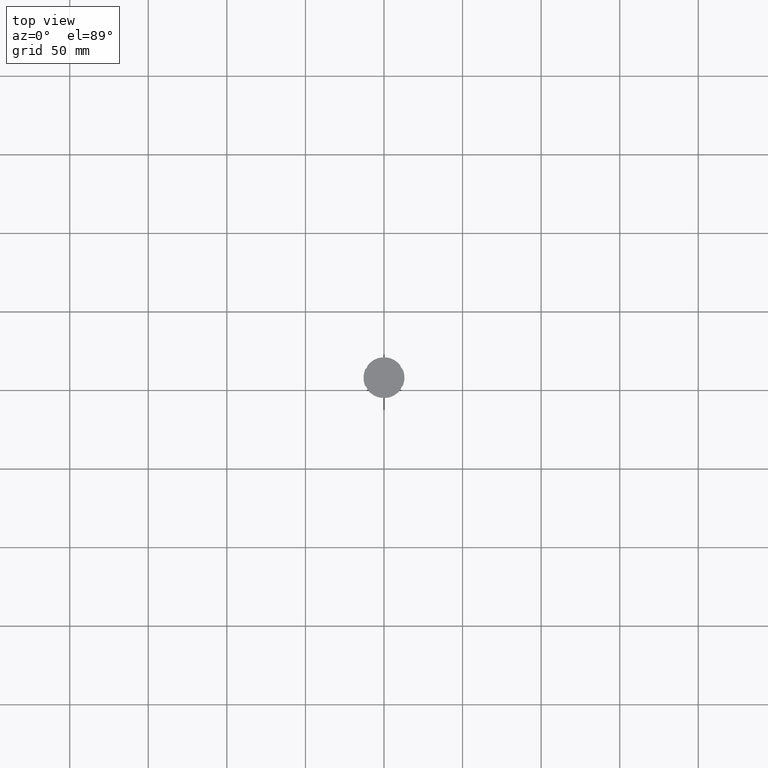
[diagram: clean part render]
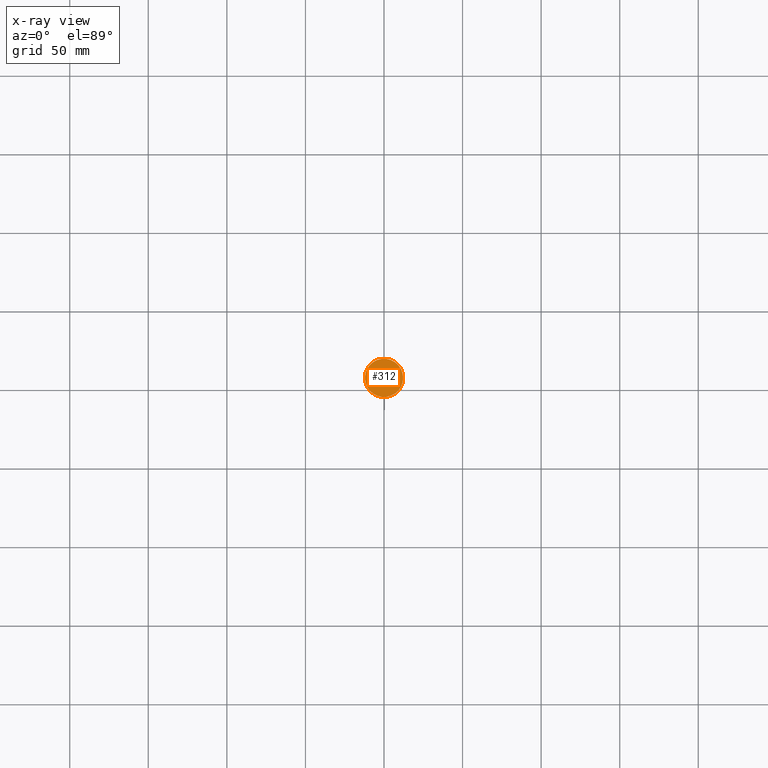
[diagram: x-ray — body ghosted, one internal face saturated and labeled with its STEP entity id]
A machine part, top view, then the same camera in x-ray: the body is ghosted and one INTERNAL B-rep face — a face not visible from any outside direction — is saturated and labeled: STEP entity #312.
In plain terms, the highlighted planar face has unit normal (0, 0, -1).
Its self-contained STEP definition (entity closure, byte-faithful):
#13 = EDGE_CURVE ( 'NONE', #2137, #1438, #2037, .T. ) ;
#32 = DIRECTION ( 'NONE',  ( -1.000000000000000000, 0.000000000000000000, -0.000000000000000000 ) ) ;
#312 = ADVANCED_FACE ( 'NONE', ( #1394 ), #1616, .F. ) ;
#439 = DIRECTION ( 'NONE',  ( -0.000000000000000000, -0.000000000000000000, 1.000000000000000000 ) ) ;
#486 = CARTESIAN_POINT ( 'NONE',  ( 0.000000000000000000, 0.000000000000000000, -12.00000000000000000 ) ) ;
#677 = CARTESIAN_POINT ( 'NONE',  ( 0.000000000000000000, 0.000000000000000000, -12.00000000000000000 ) ) ;
#770 = AXIS2_PLACEMENT_3D ( 'NONE', #1461, #2751, #2796 ) ;
#922 = EDGE_CURVE ( 'NONE', #1438, #2137, #2697, .T. ) ;
#1125 = DIRECTION ( 'NONE',  ( -1.000000000000000000, 0.000000000000000000, 0.000000000000000000 ) ) ;
#1352 = CARTESIAN_POINT ( 'NONE',  ( 12.20000000000000639, 1.512438796946981880E-15, -12.00000000000000000 ) ) ;
#1394 = FACE_OUTER_BOUND ( 'NONE', #1937, .T. ) ;
#1407 = DIRECTION ( 'NONE',  ( 0.000000000000000000, 0.000000000000000000, -1.000000000000000000 ) ) ;
#1438 = VERTEX_POINT ( 'NONE', #1352 ) ;
#1461 = CARTESIAN_POINT ( 'NONE',  ( 0.000000000000000000, 0.000000000000000000, -12.00000000000000000 ) ) ;
#1525 = ORIENTED_EDGE ( 'NONE', *, *, #922, .T. ) ;
#1616 = PLANE ( 'NONE',  #2107 ) ;
#1937 = EDGE_LOOP ( 'NONE', ( #2216, #1525 ) ) ;
#2037 = CIRCLE ( 'NONE', #770, 12.20000000000000639 ) ;
#2107 = AXIS2_PLACEMENT_3D ( 'NONE', #486, #1407, #32 ) ;
#2126 = CARTESIAN_POINT ( 'NONE',  ( -12.20000000000000639, 0.000000000000000000, -12.00000000000000000 ) ) ;
#2137 = VERTEX_POINT ( 'NONE', #2126 ) ;
#2216 = ORIENTED_EDGE ( 'NONE', *, *, #13, .T. ) ;
#2697 = CIRCLE ( 'NONE', #2737, 12.20000000000000639 ) ;
#2737 = AXIS2_PLACEMENT_3D ( 'NONE', #677, #439, #1125 ) ;
#2751 = DIRECTION ( 'NONE',  ( -0.000000000000000000, -0.000000000000000000, 1.000000000000000000 ) ) ;
#2796 = DIRECTION ( 'NONE',  ( -1.000000000000000000, 0.000000000000000000, 0.000000000000000000 ) ) ;